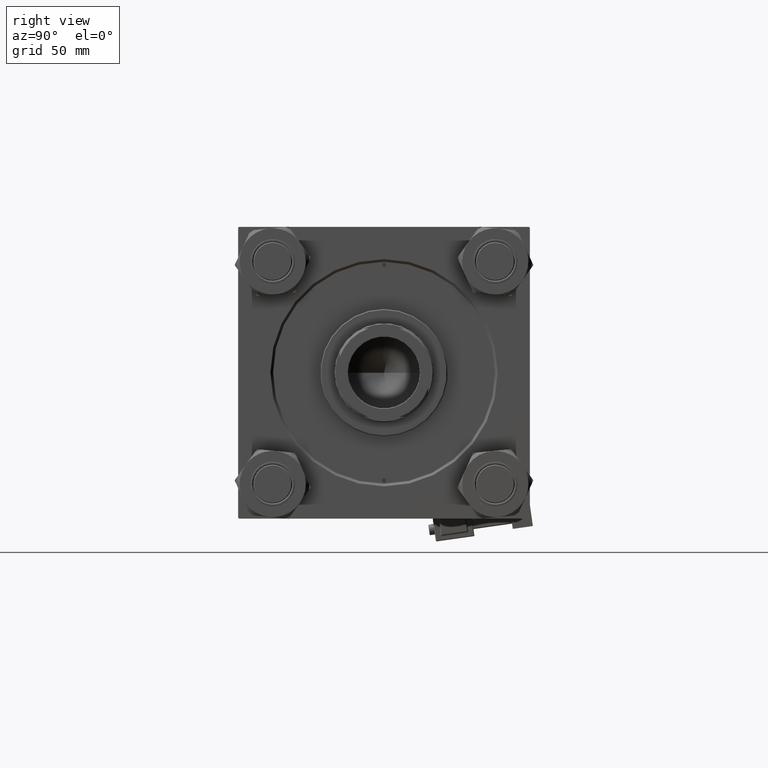
[diagram: clean part render]
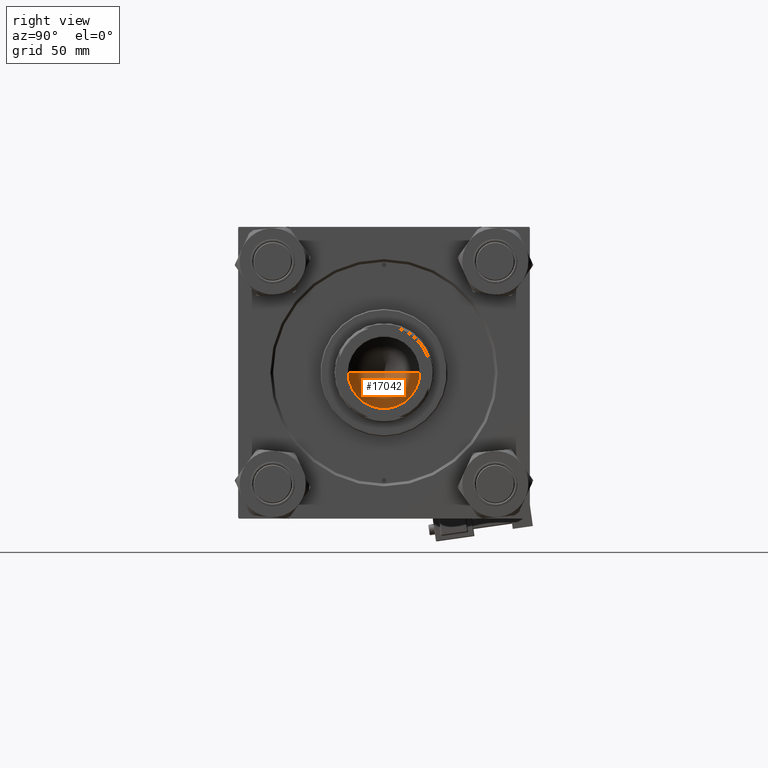
[diagram: same view with one face highlighted and labeled with its STEP entity id]
A machine part, right view. The second image highlights one B-rep face of the part: STEP entity #17042.
In plain terms, the highlighted conical surface has half-angle 59 deg.
Its self-contained STEP definition (entity closure, byte-faithful):
#4007 = LINE ( 'NONE', #36995, #11972 ) ;
#4683 = VERTEX_POINT ( 'NONE', #33835 ) ;
#4794 = DIRECTION ( 'NONE',  ( 0.8571673007021115565, 0.000000000000000000, 0.5150380749100554878 ) ) ;
#7145 = DIRECTION ( 'NONE',  ( -0.000000000000000000, -0.000000000000000000, 1.000000000000000000 ) ) ;
#8560 = EDGE_CURVE ( 'NONE', #52522, #38556, #50192, .T. ) ;
#8650 = DIRECTION ( 'NONE',  ( 1.000000000000000000, 0.000000000000000000, 0.000000000000000000 ) ) ;
#9590 = EDGE_CURVE ( 'NONE', #4683, #38556, #46185, .T. ) ;
#9968 = CARTESIAN_POINT ( 'NONE',  ( -20.24999999999998934, 2.479909768273389117E-15, 136.0000000000000000 ) ) ;
#11972 = VECTOR ( 'NONE', #4794, 1000.000000000000000 ) ;
#15664 = FACE_OUTER_BOUND ( 'NONE', #36761, .T. ) ;
#17042 = ADVANCED_FACE ( 'NONE', ( #15664 ), #39433, .F. ) ;
#17183 = CARTESIAN_POINT ( 'NONE',  ( 0.000000000000000000, 0.000000000000000000, 136.0000000000000000 ) ) ;
#18777 = DIRECTION ( 'NONE',  ( -0.8571673007021115565, 1.049727191138617710E-16, 0.5150380749100554878 ) ) ;
#21998 = CARTESIAN_POINT ( 'NONE',  ( -20.24999999999998934, 2.479909768273389117E-15, 136.0000000000000000 ) ) ;
#27413 = DIRECTION ( 'NONE',  ( 1.000000000000000000, 0.000000000000000000, 0.000000000000000000 ) ) ;
#27563 = AXIS2_PLACEMENT_3D ( 'NONE', #52348, #7145, #27413 ) ;
#29371 = ORIENTED_EDGE ( 'NONE', *, *, #8560, .T. ) ;
#33835 = CARTESIAN_POINT ( 'NONE',  ( -1.584115414415908206E-14, 0.000000000000000000, 123.8325724646918786 ) ) ;
#34979 = VECTOR ( 'NONE', #18777, 1000.000000000000000 ) ;
#36761 = EDGE_LOOP ( 'NONE', ( #48821, #48467, #29371 ) ) ;
#36995 = CARTESIAN_POINT ( 'NONE',  ( 20.24999999999998934, 0.000000000000000000, 136.0000000000000000 ) ) ;
#37902 = EDGE_CURVE ( 'NONE', #4683, #52522, #4007, .T. ) ;
#38029 = CARTESIAN_POINT ( 'NONE',  ( 20.24999999999998934, 0.000000000000000000, 136.0000000000000000 ) ) ;
#38556 = VERTEX_POINT ( 'NONE', #9968 ) ;
#39433 = CONICAL_SURFACE ( 'NONE', #27563, 20.24999999999998934, 1.029744258676652979 ) ;
#45102 = AXIS2_PLACEMENT_3D ( 'NONE', #17183, #48573, #8650 ) ;
#46185 = LINE ( 'NONE', #21998, #34979 ) ;
#48467 = ORIENTED_EDGE ( 'NONE', *, *, #37902, .T. ) ;
#48573 = DIRECTION ( 'NONE',  ( -0.000000000000000000, -0.000000000000000000, 1.000000000000000000 ) ) ;
#48821 = ORIENTED_EDGE ( 'NONE', *, *, #9590, .F. ) ;
#50192 = CIRCLE ( 'NONE', #45102, 20.24999999999998934 ) ;
#52348 = CARTESIAN_POINT ( 'NONE',  ( 0.000000000000000000, 0.000000000000000000, 136.0000000000000000 ) ) ;
#52522 = VERTEX_POINT ( 'NONE', #38029 ) ;